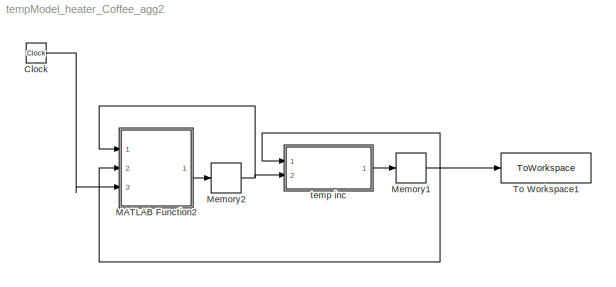
MODEL tempModel_heater_Coffee_agg2
KIND model
BLOCK [Clock] Clock
  SID = 109
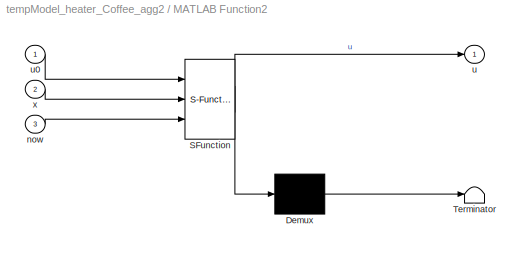
BLOCK [SubSystem] MATLAB Function2
  ErrorFcn = Stateflow.Translate.translate
  PermitHierarchicalResolution = ExplicitOnly
  Ports = [3, 1]
  RequestExecContextInheritance = off
  SFBlockType = MATLAB Function
  SID = 104
  TreatAsAtomicUnit = on
BLOCK [Demux] MATLAB Function2/ Demux 
  Outputs = 1
  Ports = [1, 1]
  SID = 104::20
BLOCK [S-Function] MATLAB Function2/ SFunction 
  EnableBusSupport = on
  FunctionName = sf_sfun
  Parameters = fixedStep,maxT,minT,startHeater
  PortCounts = [3 2]
  Ports = [3, 2]
  SFcnIsStateOwnerBlock = off
  SFunctionDeploymentMode = off
  SID = 104::19
  Tag = Stateflow S-Function 3
BLOCK [Terminator] MATLAB Function2/ Terminator 
  SID = 104::21
BLOCK [Inport] MATLAB Function2/now
  IconDisplay = Port number
  Port = 3
  SID = 104::27
BLOCK [Outport] MATLAB Function2/u
  IconDisplay = Port number
  SID = 104::5
BLOCK [Inport] MATLAB Function2/u0
  IconDisplay = Port number
  SID = 104::23
BLOCK [Inport] MATLAB Function2/x
  IconDisplay = Port number
  Port = 2
  SID = 104::1
BLOCK [Memory] Memory1
  InitialCondition = initT
  SID = 397
BLOCK [Memory] Memory2
  SID = 105
BLOCK [ToWorkspace] To Workspace1
  FixptAsFi = on
  MaxDataPoints = inf
  Ports = [1]
  SID = 103
  SampleTime = -1
  VariableName = Temp2
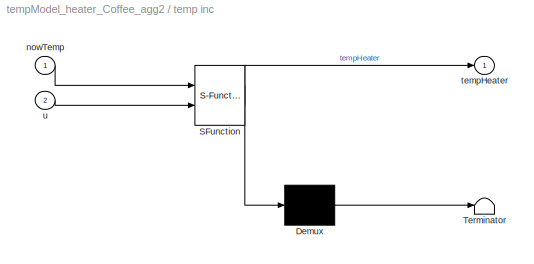
BLOCK [SubSystem] temp inc
  ErrorFcn = Stateflow.Translate.translate
  PermitHierarchicalResolution = ExplicitOnly
  Ports = [2, 1]
  RequestExecContextInheritance = off
  SFBlockType = MATLAB Function
  SID = 395
  TreatAsAtomicUnit = on
BLOCK [Demux] temp inc/ Demux 
  Outputs = 1
  Ports = [1, 1]
  SID = 395::20
BLOCK [S-Function] temp inc/ SFunction 
  EnableBusSupport = on
  FunctionName = sf_sfun
  Parameters = Tdelta,fixedStep
  PortCounts = [2 2]
  Ports = [2, 2]
  SFcnIsStateOwnerBlock = off
  SFunctionDeploymentMode = off
  SID = 395::19
  Tag = Stateflow S-Function 1
BLOCK [Terminator] temp inc/ Terminator 
  SID = 395::21
BLOCK [Inport] temp inc/nowTemp
  IconDisplay = Port number
  SID = 395::33
BLOCK [Outport] temp inc/tempHeater
  IconDisplay = Port number
  SID = 395::5
BLOCK [Inport] temp inc/u
  IconDisplay = Port number
  Port = 2
  SID = 395::27
LINE Clock:1 -> MATLAB Function2:3
LINE MATLAB Function2/ Demux :1 -> MATLAB Function2/ Terminator :1
LINE MATLAB Function2/ SFunction :1 -> MATLAB Function2/ Demux :1
LINE MATLAB Function2/ SFunction :2 -> MATLAB Function2/u:1
LINE MATLAB Function2/now:1 -> MATLAB Function2/ SFunction :3
LINE MATLAB Function2/u0:1 -> MATLAB Function2/ SFunction :1
LINE MATLAB Function2/x:1 -> MATLAB Function2/ SFunction :2
LINE MATLAB Function2:1 -> Memory2:1
NET Memory1:1 -> MATLAB Function2:2, To Workspace1:1, temp inc:1
NET Memory2:1 -> MATLAB Function2:1, temp inc:2
LINE temp inc/ Demux :1 -> temp inc/ Terminator :1
LINE temp inc/ SFunction :1 -> temp inc/ Demux :1
LINE temp inc/ SFunction :2 -> temp inc/tempHeater:1
LINE temp inc/nowTemp:1 -> temp inc/ SFunction :1
LINE temp inc/u:1 -> temp inc/ SFunction :2
LINE temp inc:1 -> Memory1:1
note: NET lines group one-source signal fan-out (src -> all destinations, sorted); 1:1 wires keep LINE
CHART temp inc states=1 transitions=1
  STATE_LABEL 'eML_blk_kernel()'
CHART MATLAB Function2 states=1 transitions=1
  STATE_LABEL 'eML_blk_kernel()'
